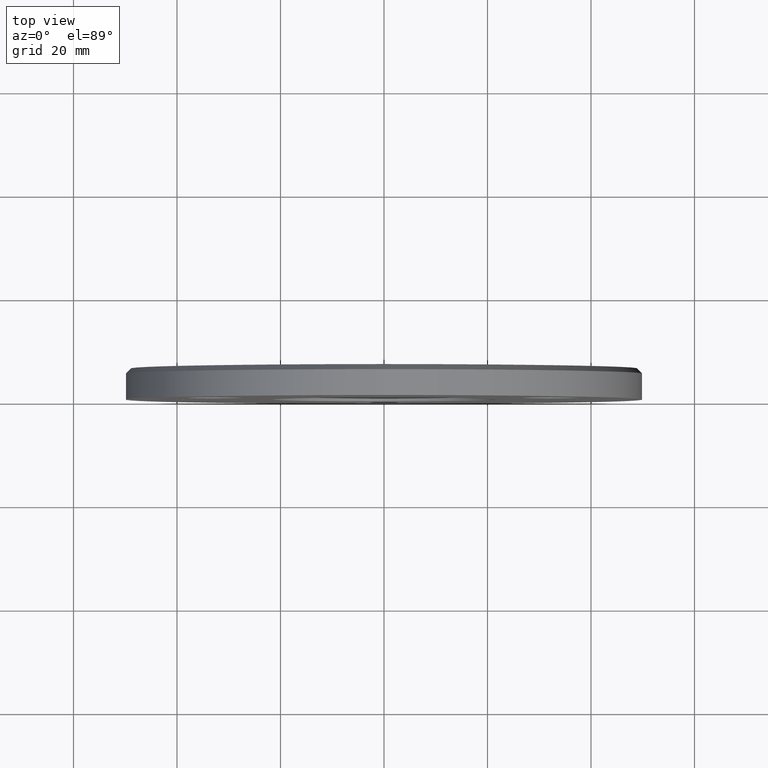
[diagram: clean part render]
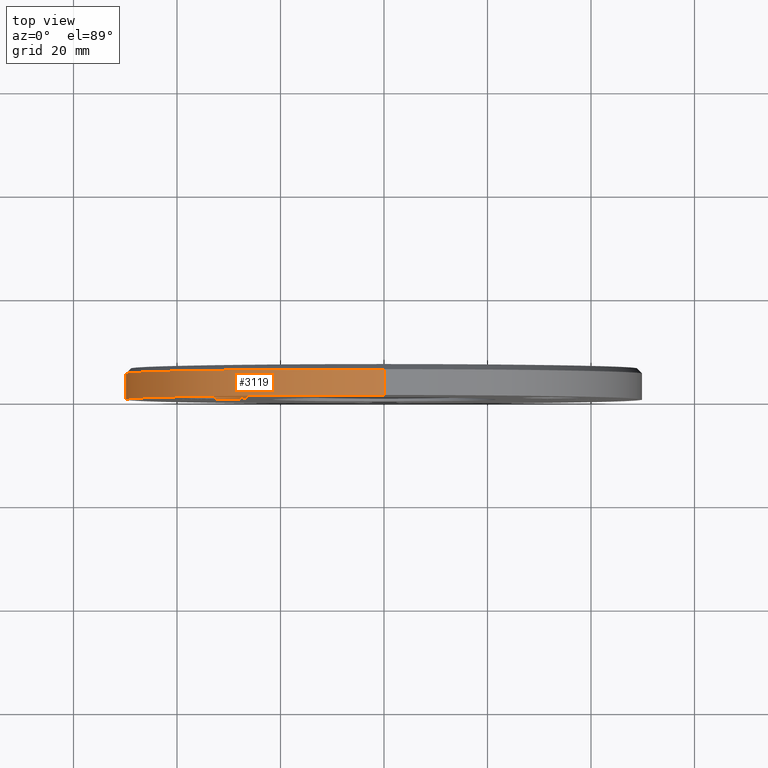
[diagram: same view with one face highlighted and labeled with its STEP entity id]
A machine part, top view. The second image highlights one B-rep face of the part: STEP entity #3119.
In plain terms, the highlighted cylindrical surface (partial cylindrical patch) has radius 50 mm, axis along (-0, -1, -0).
Its self-contained STEP definition (entity closure, byte-faithful):
#20 = CIRCLE ( 'NONE', #3393, 50.00000000000000000 ) ;
#27 = AXIS2_PLACEMENT_3D ( 'NONE', #13105, #6580, #5531 ) ;
#242 = EDGE_CURVE ( 'NONE', #11650, #1158, #9021, .T. ) ;
#951 = CARTESIAN_POINT ( 'NONE',  ( 0.000000000000000000, 6.000000000000000000, -50.00000000000000000 ) ) ;
#1006 = CIRCLE ( 'NONE', #13129, 50.00000000000000000 ) ;
#1114 = ORIENTED_EDGE ( 'NONE', *, *, #3225, .T. ) ;
#1158 = VERTEX_POINT ( 'NONE', #4011 ) ;
#1354 = CARTESIAN_POINT ( 'NONE',  ( 0.000000000000000000, 0.000000000000000000, 0.000000000000000000 ) ) ;
#2941 = VERTEX_POINT ( 'NONE', #9615 ) ;
#3119 = ADVANCED_FACE ( 'NONE', ( #3269 ), #10963, .T. ) ;
#3225 = EDGE_CURVE ( 'NONE', #2941, #11650, #20, .T. ) ;
#3269 = FACE_OUTER_BOUND ( 'NONE', #6729, .T. ) ;
#3393 = AXIS2_PLACEMENT_3D ( 'NONE', #5724, #10187, #9029 ) ;
#3455 = LINE ( 'NONE', #10132, #10302 ) ;
#3591 = ORIENTED_EDGE ( 'NONE', *, *, #4786, .T. ) ;
#4011 = CARTESIAN_POINT ( 'NONE',  ( 0.000000000000000000, 0.000000000000000000, -50.00000000000000000 ) ) ;
#4786 = EDGE_CURVE ( 'NONE', #1158, #5841, #1006, .T. ) ;
#4853 = CARTESIAN_POINT ( 'NONE',  ( 0.000000000000000000, 4.999999999999999112, -50.00000000000000000 ) ) ;
#5338 = DIRECTION ( 'NONE',  ( -0.000000000000000000, -1.000000000000000000, -0.000000000000000000 ) ) ;
#5531 = DIRECTION ( 'NONE',  ( 0.000000000000000000, 0.000000000000000000, -1.000000000000000000 ) ) ;
#5724 = CARTESIAN_POINT ( 'NONE',  ( 0.000000000000000000, 4.999999999999999112, 0.000000000000000000 ) ) ;
#5841 = VERTEX_POINT ( 'NONE', #11688 ) ;
#6580 = DIRECTION ( 'NONE',  ( -0.000000000000000000, -1.000000000000000000, -0.000000000000000000 ) ) ;
#6729 = EDGE_LOOP ( 'NONE', ( #12064, #1114, #13460, #3591 ) ) ;
#6887 = DIRECTION ( 'NONE',  ( 0.000000000000000000, 0.000000000000000000, 1.000000000000000000 ) ) ;
#7904 = DIRECTION ( 'NONE',  ( -0.000000000000000000, -1.000000000000000000, -0.000000000000000000 ) ) ;
#7970 = VECTOR ( 'NONE', #5338, 1000.000000000000000 ) ;
#9018 = DIRECTION ( 'NONE',  ( 0.000000000000000000, 1.000000000000000000, 0.000000000000000000 ) ) ;
#9021 = LINE ( 'NONE', #951, #7970 ) ;
#9029 = DIRECTION ( 'NONE',  ( 0.000000000000000000, 0.000000000000000000, 1.000000000000000000 ) ) ;
#9615 = CARTESIAN_POINT ( 'NONE',  ( 6.123233995736766085E-15, 4.999999999999999112, 50.00000000000000000 ) ) ;
#9627 = EDGE_CURVE ( 'NONE', #2941, #5841, #3455, .T. ) ;
#10132 = CARTESIAN_POINT ( 'NONE',  ( 6.123233995736766085E-15, 6.000000000000000000, 50.00000000000000000 ) ) ;
#10187 = DIRECTION ( 'NONE',  ( 0.000000000000000000, -1.000000000000000000, 0.000000000000000000 ) ) ;
#10302 = VECTOR ( 'NONE', #7904, 1000.000000000000000 ) ;
#10963 = CYLINDRICAL_SURFACE ( 'NONE', #27, 50.00000000000000000 ) ;
#11650 = VERTEX_POINT ( 'NONE', #4853 ) ;
#11688 = CARTESIAN_POINT ( 'NONE',  ( 6.123233995736766085E-15, 0.000000000000000000, 50.00000000000000000 ) ) ;
#12064 = ORIENTED_EDGE ( 'NONE', *, *, #9627, .F. ) ;
#13105 = CARTESIAN_POINT ( 'NONE',  ( 0.000000000000000000, 6.000000000000000000, 0.000000000000000000 ) ) ;
#13129 = AXIS2_PLACEMENT_3D ( 'NONE', #1354, #9018, #6887 ) ;
#13460 = ORIENTED_EDGE ( 'NONE', *, *, #242, .T. ) ;